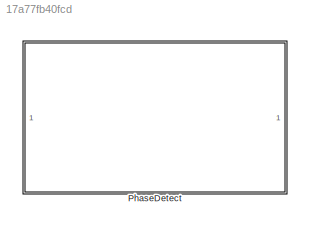
MODEL slx_17a77fb40fcd
KIND library
CONFIG AbsTol = auto
CONFIG EnableMultiTasking = off
CONFIG FixedStep = auto
CONFIG MaxStep = auto
CONFIG MinStep = auto
CONFIG RelTol = 1e-3
CONFIG SampleTimeConstraint = Unconstrained
CONFIG SolverName = VariableStepAuto
CONFIG StartTime = 0.0
CONFIG StopTime = 10.0
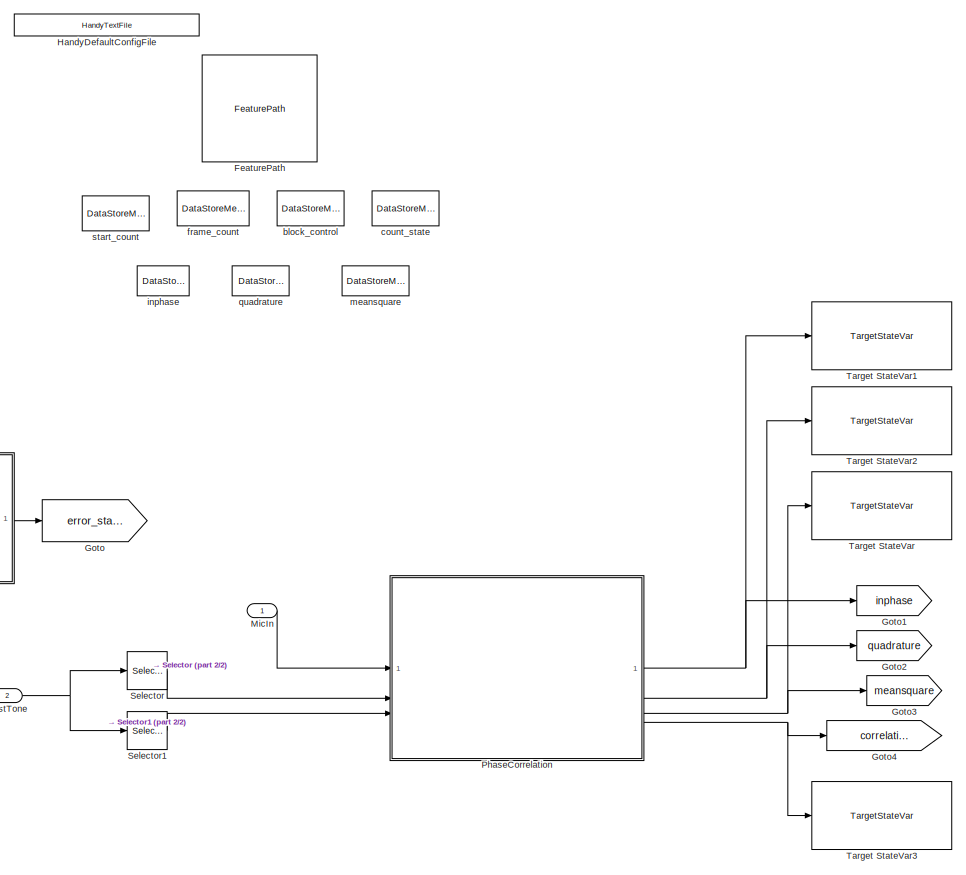
[diagram: PhaseDetect - part 1/2, right side, full height]
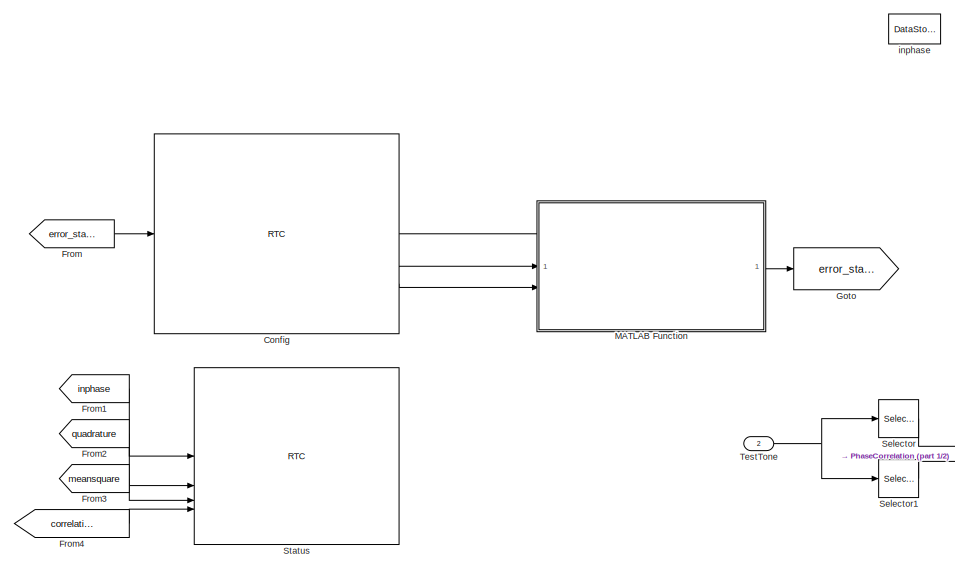
[diagram: PhaseDetect - part 2/2, middle left region]
BLOCK [SubSystem] PhaseDetect
BLOCK [Reference] PhaseDetect/Config  REF=RTC/RTC
  SourceBlock = RTC/RTC
  SourceType = Talaria RTC Receive
BLOCK [Reference] PhaseDetect/FeaturePath  REF=FeaturePath/FeaturePath
  SourceBlock = FeaturePath/FeaturePath
  SourceType = Talaria Feature Path
BLOCK [From] PhaseDetect/From
  GotoTag = error_status
BLOCK [From] PhaseDetect/From1
  GotoTag = inphase
BLOCK [From] PhaseDetect/From2
  GotoTag = quadrature
BLOCK [From] PhaseDetect/From3
  GotoTag = meansquare
BLOCK [From] PhaseDetect/From4
  GotoTag = correlation_statusflag
BLOCK [Goto] PhaseDetect/Goto
  GotoTag = error_status
BLOCK [Goto] PhaseDetect/Goto1
  GotoTag = inphase
BLOCK [Goto] PhaseDetect/Goto2
  GotoTag = quadrature
BLOCK [Goto] PhaseDetect/Goto3
  GotoTag = meansquare
BLOCK [Goto] PhaseDetect/Goto4
  GotoTag = correlation_statusflag
BLOCK [Reference] PhaseDetect/HandyDefaultConfigFile  REF=HandyTextFile/HandyTextFile
  SourceBlock = HandyTextFile/HandyTextFile
  SourceType = Talaria Handy Text File
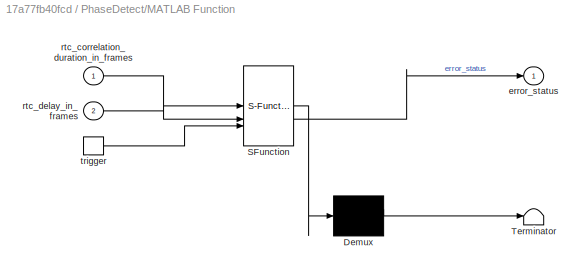
BLOCK [SubSystem] PhaseDetect/MATLAB Function
  ErrorFcn = Stateflow.Translate.translate
  PermitHierarchicalResolution = ExplicitOnly
  SFBlockType = MATLAB Function
  TreatAsAtomicUnit = on
BLOCK [Demux] PhaseDetect/MATLAB Function/ Demux 
  Outputs = 1
BLOCK [S-Function] PhaseDetect/MATLAB Function/ SFunction 
  EnableBusSupport = off
  FunctionName = sf_sfun
  Parameters = numMicIn
  PortCounts = [3 2]
  SFcnIsStateOwnerBlock = off
  SFunctionDeploymentMode = off
  Tag = Stateflow S-Function 7
BLOCK [Terminator] PhaseDetect/MATLAB Function/ Terminator 
BLOCK [Outport] PhaseDetect/MATLAB Function/error_status
BLOCK [Inport] PhaseDetect/MATLAB Function/rtc_correlation_duration_in_frames
BLOCK [Inport] PhaseDetect/MATLAB Function/rtc_delay_in_frames
  Port = 2
BLOCK [TriggerPort] PhaseDetect/MATLAB Function/trigger
  ShowOutputPort = on
  StatesWhenEnabling = held
  TriggerType = function-call
  VariantControl = (inherit)
BLOCK [Inport] PhaseDetect/MicIn
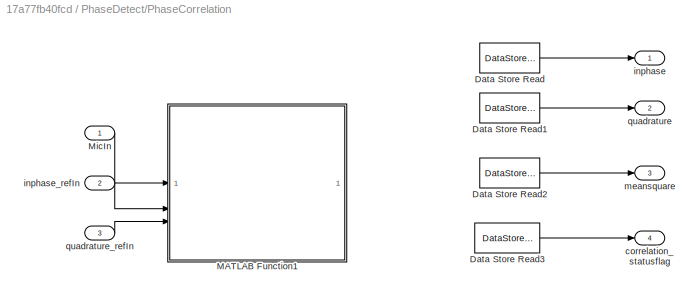
BLOCK [SubSystem] PhaseDetect/PhaseCorrelation
BLOCK [DataStoreRead] PhaseDetect/PhaseCorrelation/Data Store Read
  DataStoreName = inphase
  IndexOptions = Index vector (dialog)
  Indices = 1
  OutputSizes = 1
BLOCK [DataStoreRead] PhaseDetect/PhaseCorrelation/Data Store Read1
  DataStoreName = quadrature
  IndexOptions = Index vector (dialog)
  Indices = 1
  OutputSizes = 1
BLOCK [DataStoreRead] PhaseDetect/PhaseCorrelation/Data Store Read2
  DataStoreName = meansquare
  IndexOptions = Index vector (dialog)
  Indices = 1
  OutputSizes = 1
BLOCK [DataStoreRead] PhaseDetect/PhaseCorrelation/Data Store Read3
  DataStoreName = block_control
  IndexOptions = Index vector (dialog)
  Indices = 1
  OutputSizes = 1
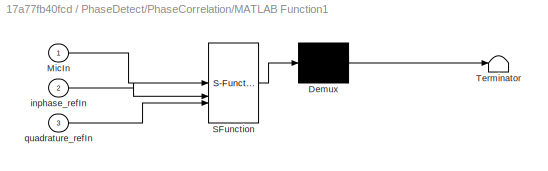
BLOCK [SubSystem] PhaseDetect/PhaseCorrelation/MATLAB Function1
  ErrorFcn = Stateflow.Translate.translate
  PermitHierarchicalResolution = ExplicitOnly
  SFBlockType = MATLAB Function
  TreatAsAtomicUnit = on
BLOCK [Demux] PhaseDetect/PhaseCorrelation/MATLAB Function1/ Demux 
  Outputs = 1
BLOCK [S-Function] PhaseDetect/PhaseCorrelation/MATLAB Function1/ SFunction 
  EnableBusSupport = off
  FunctionName = sf_sfun
  Parameters = frameSize,numMicIn
  PortCounts = [3 1]
  SFcnIsStateOwnerBlock = off
  SFunctionDeploymentMode = off
  Tag = Stateflow S-Function 8
BLOCK [Terminator] PhaseDetect/PhaseCorrelation/MATLAB Function1/ Terminator 
BLOCK [Inport] PhaseDetect/PhaseCorrelation/MATLAB Function1/MicIn
BLOCK [Inport] PhaseDetect/PhaseCorrelation/MATLAB Function1/inphase_refIn
  Port = 2
BLOCK [Inport] PhaseDetect/PhaseCorrelation/MATLAB Function1/quadrature_refIn
  Port = 3
BLOCK [Inport] PhaseDetect/PhaseCorrelation/MicIn
BLOCK [Outport] PhaseDetect/PhaseCorrelation/correlation_statusflag
  Port = 4
BLOCK [Outport] PhaseDetect/PhaseCorrelation/inphase
BLOCK [Inport] PhaseDetect/PhaseCorrelation/inphase_refIn
  Port = 2
BLOCK [Outport] PhaseDetect/PhaseCorrelation/meansquare
  Port = 3
BLOCK [Outport] PhaseDetect/PhaseCorrelation/quadrature
  Port = 2
BLOCK [Inport] PhaseDetect/PhaseCorrelation/quadrature_refIn
  Port = 3
BLOCK [Selector] PhaseDetect/Selector
  IndexOptions = Select all,Index vector (dialog)
  Indices = [1 2],1
  InputPortWidth = 3
  NumberOfDimensions = 2
  OutputSizes = 1,1
BLOCK [Selector] PhaseDetect/Selector1
  IndexOptions = Select all,Index vector (dialog)
  Indices = [1 2],2
  InputPortWidth = 3
  NumberOfDimensions = 2
  OutputSizes = 1,1
BLOCK [Reference] PhaseDetect/Status  REF=RTC/RTC
  SourceBlock = RTC/RTC
  SourceType = Talaria RTC Receive
BLOCK [Reference] PhaseDetect/Target StateVar  REF=StateVar/TargetStateVar
  SourceBlock = StateVar/TargetStateVar
  SourceType = Talaria Target State Variable
BLOCK [Reference] PhaseDetect/Target StateVar1  REF=StateVar/TargetStateVar
  SourceBlock = StateVar/TargetStateVar
  SourceType = Talaria Target State Variable
BLOCK [Reference] PhaseDetect/Target StateVar2  REF=StateVar/TargetStateVar
  SourceBlock = StateVar/TargetStateVar
  SourceType = Talaria Target State Variable
BLOCK [Reference] PhaseDetect/Target StateVar3  REF=StateVar/TargetStateVar
  SourceBlock = StateVar/TargetStateVar
  SourceType = Talaria Target State Variable
BLOCK [Inport] PhaseDetect/TestTone
  Port = 2
BLOCK [DataStoreMemory] PhaseDetect/block_control
  DataStoreName = block_control
  OutDataTypeStr = int32
  ShowAdditionalParam = off
  SignalType = real
BLOCK [DataStoreMemory] PhaseDetect/count_state
  DataStoreName = count_state
  InitialValue = Config.InitialFrameCount
  OutDataTypeStr = int32
  ShowAdditionalParam = off
  SignalType = real
BLOCK [DataStoreMemory] PhaseDetect/frame_count
  DataStoreName = frame_count
  InitialValue = Config.InitialFrameCount
  OutDataTypeStr = int32
  ShowAdditionalParam = off
  SignalType = real
BLOCK [DataStoreMemory] PhaseDetect/inphase
  DataStoreName = inphase
  InitialValue = zeros(Config.NumMicIn,1)
  OutDataTypeStr = single
  ShowAdditionalParam = off
  SignalType = real
BLOCK [DataStoreMemory] PhaseDetect/meansquare
  DataStoreName = meansquare
  InitialValue = zeros(Config.NumMicIn,1)
  OutDataTypeStr = single
  ShowAdditionalParam = off
  SignalType = real
BLOCK [DataStoreMemory] PhaseDetect/quadrature
  DataStoreName = quadrature
  InitialValue = zeros(Config.NumMicIn,1)
  OutDataTypeStr = single
  ShowAdditionalParam = off
  SignalType = real
BLOCK [DataStoreMemory] PhaseDetect/start_count
  DataStoreName = start_count
  InitialValue = Config.InitialStartCount
  OutDataTypeStr = int32
  ShowAdditionalParam = off
  SignalType = real
LINE PhaseDetect/Config:1 -> PhaseDetect/MATLAB Function:trigger
LINE PhaseDetect/Config:2 -> PhaseDetect/MATLAB Function:1
LINE PhaseDetect/Config:3 -> PhaseDetect/MATLAB Function:2
LINE PhaseDetect/From1:1 -> PhaseDetect/Status:1
LINE PhaseDetect/From2:1 -> PhaseDetect/Status:2
LINE PhaseDetect/From3:1 -> PhaseDetect/Status:3
LINE PhaseDetect/From4:1 -> PhaseDetect/Status:4
LINE PhaseDetect/From:1 -> PhaseDetect/Config:1
LINE PhaseDetect/MATLAB Function:1 -> PhaseDetect/Goto:1
LINE PhaseDetect/MicIn:1 -> PhaseDetect/PhaseCorrelation:1
LINE PhaseDetect/PhaseCorrelation/Data Store Read1:1 -> PhaseDetect/PhaseCorrelation/quadrature:1
LINE PhaseDetect/PhaseCorrelation/Data Store Read2:1 -> PhaseDetect/PhaseCorrelation/meansquare:1
LINE PhaseDetect/PhaseCorrelation/Data Store Read3:1 -> PhaseDetect/PhaseCorrelation/correlation_statusflag:1
LINE PhaseDetect/PhaseCorrelation/Data Store Read:1 -> PhaseDetect/PhaseCorrelation/inphase:1
LINE PhaseDetect/PhaseCorrelation/MicIn:1 -> PhaseDetect/PhaseCorrelation/MATLAB Function1:1
LINE PhaseDetect/PhaseCorrelation/inphase_refIn:1 -> PhaseDetect/PhaseCorrelation/MATLAB Function1:2
LINE PhaseDetect/PhaseCorrelation/quadrature_refIn:1 -> PhaseDetect/PhaseCorrelation/MATLAB Function1:3
NET PhaseDetect/PhaseCorrelation:1 -> PhaseDetect/Goto1:1, PhaseDetect/Target StateVar1:1
NET PhaseDetect/PhaseCorrelation:2 -> PhaseDetect/Goto2:1, PhaseDetect/Target StateVar2:1
NET PhaseDetect/PhaseCorrelation:3 -> PhaseDetect/Goto3:1, PhaseDetect/Target StateVar:1
NET PhaseDetect/PhaseCorrelation:4 -> PhaseDetect/Goto4:1, PhaseDetect/Target StateVar3:1
LINE PhaseDetect/Selector1:1 -> PhaseDetect/PhaseCorrelation:3
LINE PhaseDetect/Selector:1 -> PhaseDetect/PhaseCorrelation:2
NET PhaseDetect/TestTone:1 -> PhaseDetect/Selector1:1, PhaseDetect/Selector:1
note: NET lines group one-source signal fan-out (src -> all destinations, sorted); 1:1 wires keep LINE
CHART PhaseDetect/MATLAB Function states=1 transitions=1
  STATE_LABEL 'eML_blk_kernel()'
  STATE_LABEL 'SCRIPT:\nfunction error_status = phaseDetectorconfig(rtc_correlation_duration_in_frames,rtc_delay_in_frames, numMicIn)\n    %#codegen\n    % datastore memory to control the audio processing logic:\n    global inphase;\n    global quadrature;\n    global meansquare;\n    global start_count;\n    global frame_count;\n    global block_control;\n    global count_state;  \n    % Error status   \n    error_status =...<+791ch>'
CHART PhaseDetect/PhaseCorrelation/MATLAB Function1 states=1 transitions=1
  STATE_LABEL 'eML_blk_kernel()'
  STATE_LABEL 'SCRIPT:\nfunction phase_correlation(MicIn, inphase_refIn,quadrature_refIn, numMicIn, frameSize)\n    %#codegen\n    % datastore memory to control the audio processing logic:\n    global inphase;\n    global quadrature;\n    global meansquare;\n    global start_count;\n    global frame_count;\n    global block_control;\n    global count_state;\n    \n  if (block_control ~= 0)    % Calculate correlations when b...<+849ch>'
CHART  states=0 transitions=0
CHART  states=0 transitions=0
